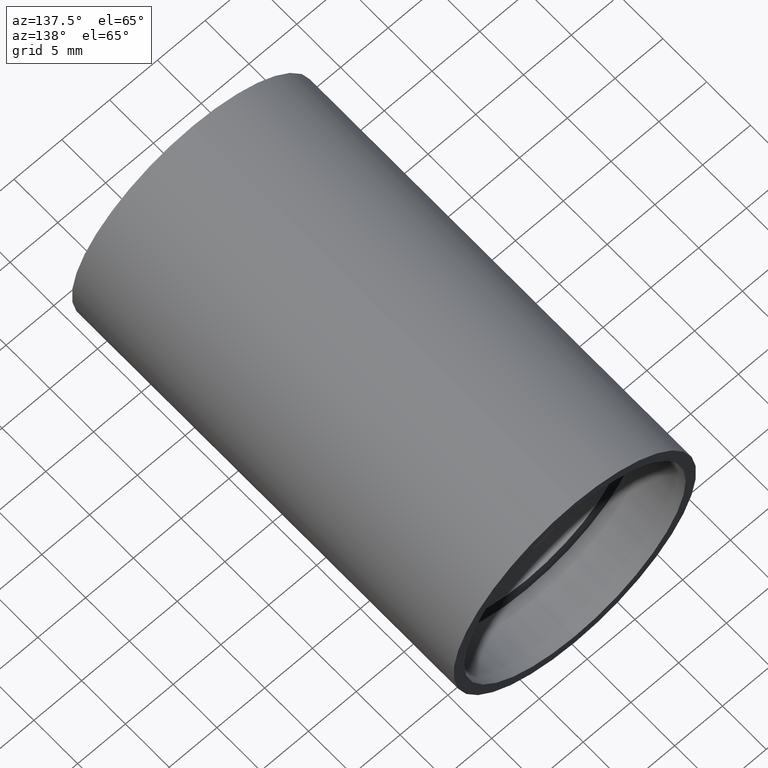
[diagram: clean part render]
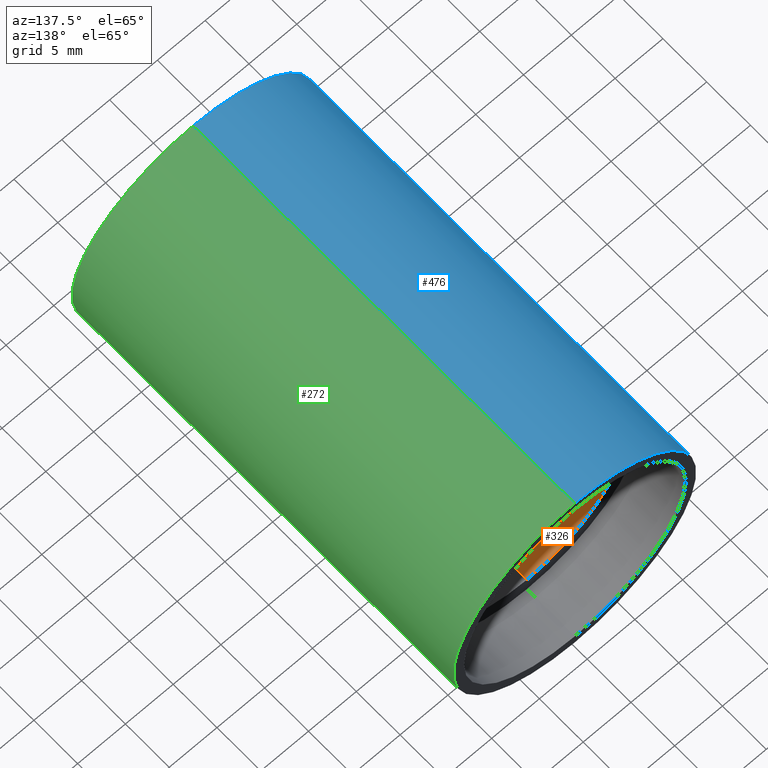
[diagram: same view with three faces highlighted in distinct colors, each labeled with its STEP entity id]
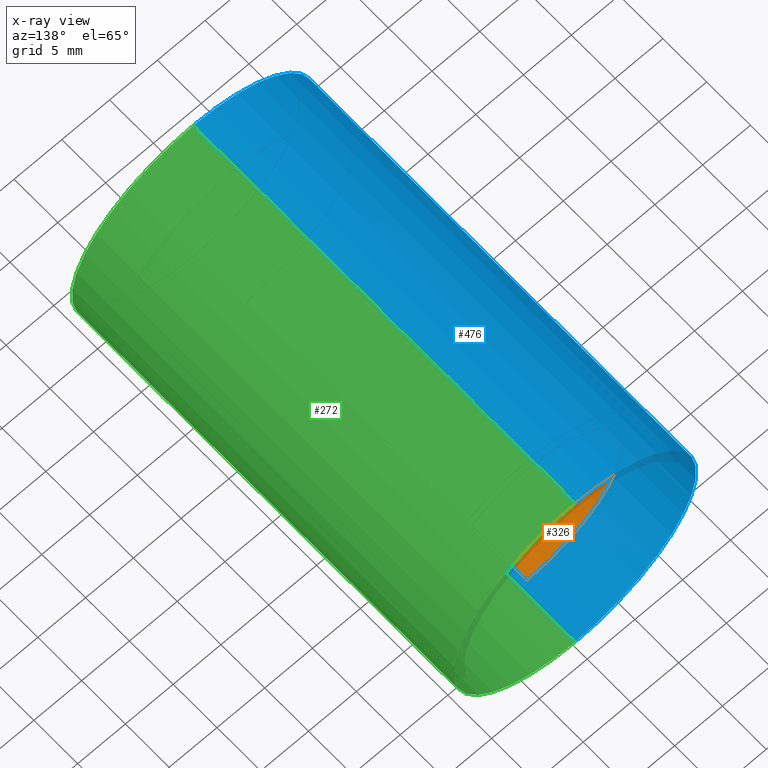
[diagram: x-ray of the same camera — body ghosted, the three highlighted faces saturated]
A machine part, auxiliary view with three faces highlighted in distinct colors.
The next image is the same camera in x-ray (body ghosted, the three faces saturated) — at least one of them is partly hidden behind the body in this view.
Their STEP definitions:

[orange] entity #326 — the highlighted cylindrical surface (partial cylindrical patch) has radius 10 mm, axis along (-0, 1, -0).
#4 = CARTESIAN_POINT ( 'NONE',  ( 0.0000000000000000000, 5.499999999999976900, 10.00000000000002000 ) ) ;
#28 = CYLINDRICAL_SURFACE ( 'NONE', #610, 10.00000000000002000 ) ;
#43 = AXIS2_PLACEMENT_3D ( 'NONE', #123, #620, #219 ) ;
#77 = ORIENTED_EDGE ( 'NONE', *, *, #302, .T. ) ;
#83 = CIRCLE ( 'NONE', #43, 10.00000000000002000 ) ;
#97 = CARTESIAN_POINT ( 'NONE',  ( 1.224646799147355400E-015, 5.499999999999976900, -10.00000000000002000 ) ) ;
#102 = CARTESIAN_POINT ( 'NONE',  ( 0.0000000000000000000, 38.09999999999998000, 0.0000000000000000000 ) ) ;
#114 = LINE ( 'NONE', #396, #128 ) ;
#123 = CARTESIAN_POINT ( 'NONE',  ( 0.0000000000000000000, 5.499999999999976900, 0.0000000000000000000 ) ) ;
#128 = VECTOR ( 'NONE', #595, 1000.000000000000000 ) ;
#147 = CARTESIAN_POINT ( 'NONE',  ( 0.0000000000000000000, 38.09999999999998000, 10.00000000000002000 ) ) ;
#156 = CARTESIAN_POINT ( 'NONE',  ( 1.224646799147355400E-015, 38.09999999999998000, -10.00000000000002000 ) ) ;
#160 = ORIENTED_EDGE ( 'NONE', *, *, #616, .T. ) ;
#194 = DIRECTION ( 'NONE',  ( 0.0000000000000000000, 0.0000000000000000000, 1.000000000000000000 ) ) ;
#219 = DIRECTION ( 'NONE',  ( 0.0000000000000000000, 0.0000000000000000000, 1.000000000000000000 ) ) ;
#246 = VERTEX_POINT ( 'NONE', #156 ) ;
#253 = EDGE_LOOP ( 'NONE', ( #589, #160, #77, #344 ) ) ;
#259 = CARTESIAN_POINT ( 'NONE',  ( 0.0000000000000000000, 161.3761669434274500, 10.00000000000002000 ) ) ;
#277 = LINE ( 'NONE', #259, #570 ) ;
#302 = EDGE_CURVE ( 'NONE', #246, #618, #428, .T. ) ;
#314 = DIRECTION ( 'NONE',  ( -0.0000000000000000000, 1.000000000000000000, -0.0000000000000000000 ) ) ;
#326 = ADVANCED_FACE ( 'NONE', ( #529 ), #28, .F. ) ;
#344 = ORIENTED_EDGE ( 'NONE', *, *, #549, .F. ) ;
#360 = CARTESIAN_POINT ( 'NONE',  ( 0.0000000000000000000, 161.3761669434274500, 0.0000000000000000000 ) ) ;
#363 = VERTEX_POINT ( 'NONE', #97 ) ;
#396 = CARTESIAN_POINT ( 'NONE',  ( 1.224646799147355400E-015, 161.3761669434274500, -10.00000000000002000 ) ) ;
#428 = CIRCLE ( 'NONE', #542, 10.00000000000002000 ) ;
#457 = DIRECTION ( 'NONE',  ( -0.0000000000000000000, 1.000000000000000000, -0.0000000000000000000 ) ) ;
#485 = EDGE_CURVE ( 'NONE', #363, #493, #83, .T. ) ;
#493 = VERTEX_POINT ( 'NONE', #4 ) ;
#529 = FACE_OUTER_BOUND ( 'NONE', #253, .T. ) ;
#542 = AXIS2_PLACEMENT_3D ( 'NONE', #102, #552, #554 ) ;
#549 = EDGE_CURVE ( 'NONE', #493, #618, #277, .T. ) ;
#552 = DIRECTION ( 'NONE',  ( -0.0000000000000000000, 1.000000000000000000, -0.0000000000000000000 ) ) ;
#554 = DIRECTION ( 'NONE',  ( 0.0000000000000000000, 0.0000000000000000000, 1.000000000000000000 ) ) ;
#570 = VECTOR ( 'NONE', #314, 1000.000000000000000 ) ;
#589 = ORIENTED_EDGE ( 'NONE', *, *, #485, .F. ) ;
#595 = DIRECTION ( 'NONE',  ( -0.0000000000000000000, 1.000000000000000000, -0.0000000000000000000 ) ) ;
#610 = AXIS2_PLACEMENT_3D ( 'NONE', #360, #457, #194 ) ;
#616 = EDGE_CURVE ( 'NONE', #363, #246, #114, .T. ) ;
#618 = VERTEX_POINT ( 'NONE', #147 ) ;
#620 = DIRECTION ( 'NONE',  ( -0.0000000000000000000, 1.000000000000000000, -0.0000000000000000000 ) ) ;

[blue] entity #476 — the highlighted cylindrical surface (partial cylindrical patch) has radius 12.7 mm, axis along (-0, 1, -0).
#13 = DIRECTION ( 'NONE',  ( -0.0000000000000000000, 1.000000000000000000, -0.0000000000000000000 ) ) ;
#38 = EDGE_CURVE ( 'NONE', #606, #343, #116, .T. ) ;
#75 = CIRCLE ( 'NONE', #270, 12.70000000000001900 ) ;
#93 = FACE_OUTER_BOUND ( 'NONE', #207, .T. ) ;
#116 = LINE ( 'NONE', #348, #333 ) ;
#133 = ORIENTED_EDGE ( 'NONE', *, *, #418, .T. ) ;
#137 = AXIS2_PLACEMENT_3D ( 'NONE', #275, #383, #424 ) ;
#153 = ORIENTED_EDGE ( 'NONE', *, *, #164, .F. ) ;
#164 = EDGE_CURVE ( 'NONE', #343, #568, #75, .T. ) ;
#196 = CARTESIAN_POINT ( 'NONE',  ( 0.0000000000000000000, -2.775557561562891400E-014, 12.70000000000001900 ) ) ;
#198 = CARTESIAN_POINT ( 'NONE',  ( 0.0000000000000000000, 43.59999999999998700, 12.70000000000001900 ) ) ;
#207 = EDGE_LOOP ( 'NONE', ( #576, #432, #133, #153 ) ) ;
#270 = AXIS2_PLACEMENT_3D ( 'NONE', #604, #367, #608 ) ;
#275 = CARTESIAN_POINT ( 'NONE',  ( 0.0000000000000000000, 161.3761669434274500, 0.0000000000000000000 ) ) ;
#286 = DIRECTION ( 'NONE',  ( -0.0000000000000000000, 1.000000000000000000, -0.0000000000000000000 ) ) ;
#315 = CYLINDRICAL_SURFACE ( 'NONE', #137, 12.70000000000001900 ) ;
#321 = CIRCLE ( 'NONE', #329, 12.70000000000001900 ) ;
#329 = AXIS2_PLACEMENT_3D ( 'NONE', #539, #13, #588 ) ;
#333 = VECTOR ( 'NONE', #286, 1000.000000000000000 ) ;
#335 = CARTESIAN_POINT ( 'NONE',  ( 0.0000000000000000000, 161.3761669434274500, 12.70000000000001900 ) ) ;
#343 = VERTEX_POINT ( 'NONE', #550 ) ;
#348 = CARTESIAN_POINT ( 'NONE',  ( 1.555301434917140800E-015, 161.3761669434274500, -12.70000000000001900 ) ) ;
#351 = VECTOR ( 'NONE', #531, 1000.000000000000000 ) ;
#357 = EDGE_CURVE ( 'NONE', #606, #574, #321, .T. ) ;
#367 = DIRECTION ( 'NONE',  ( -0.0000000000000000000, 1.000000000000000000, -0.0000000000000000000 ) ) ;
#383 = DIRECTION ( 'NONE',  ( -0.0000000000000000000, 1.000000000000000000, -0.0000000000000000000 ) ) ;
#418 = EDGE_CURVE ( 'NONE', #574, #568, #499, .T. ) ;
#424 = DIRECTION ( 'NONE',  ( 0.0000000000000000000, 0.0000000000000000000, 1.000000000000000000 ) ) ;
#432 = ORIENTED_EDGE ( 'NONE', *, *, #357, .T. ) ;
#476 = ADVANCED_FACE ( 'NONE', ( #93 ), #315, .T. ) ;
#499 = LINE ( 'NONE', #335, #351 ) ;
#531 = DIRECTION ( 'NONE',  ( -0.0000000000000000000, 1.000000000000000000, -0.0000000000000000000 ) ) ;
#535 = CARTESIAN_POINT ( 'NONE',  ( 1.555301434917140800E-015, -2.775557561562891400E-014, -12.70000000000001900 ) ) ;
#539 = CARTESIAN_POINT ( 'NONE',  ( 0.0000000000000000000, -2.775557561562891400E-014, 0.0000000000000000000 ) ) ;
#550 = CARTESIAN_POINT ( 'NONE',  ( 1.555301434917140800E-015, 43.59999999999998700, -12.70000000000001900 ) ) ;
#568 = VERTEX_POINT ( 'NONE', #198 ) ;
#574 = VERTEX_POINT ( 'NONE', #196 ) ;
#576 = ORIENTED_EDGE ( 'NONE', *, *, #38, .F. ) ;
#588 = DIRECTION ( 'NONE',  ( 0.0000000000000000000, 0.0000000000000000000, 1.000000000000000000 ) ) ;
#604 = CARTESIAN_POINT ( 'NONE',  ( 0.0000000000000000000, 43.59999999999998700, 0.0000000000000000000 ) ) ;
#606 = VERTEX_POINT ( 'NONE', #535 ) ;
#608 = DIRECTION ( 'NONE',  ( 0.0000000000000000000, 0.0000000000000000000, 1.000000000000000000 ) ) ;

[green] entity #272 — the highlighted cylindrical surface (partial cylindrical patch) has radius 12.7 mm, axis along (-0, 1, -0).
#24 = DIRECTION ( 'NONE',  ( 0.0000000000000000000, 0.0000000000000000000, 1.000000000000000000 ) ) ;
#38 = EDGE_CURVE ( 'NONE', #606, #343, #116, .T. ) ;
#76 = AXIS2_PLACEMENT_3D ( 'NONE', #508, #106, #24 ) ;
#85 = DIRECTION ( 'NONE',  ( -0.0000000000000000000, 1.000000000000000000, -0.0000000000000000000 ) ) ;
#86 = CIRCLE ( 'NONE', #240, 12.70000000000001900 ) ;
#87 = CARTESIAN_POINT ( 'NONE',  ( 0.0000000000000000000, -2.775557561562891400E-014, 0.0000000000000000000 ) ) ;
#106 = DIRECTION ( 'NONE',  ( -0.0000000000000000000, 1.000000000000000000, -0.0000000000000000000 ) ) ;
#108 = CIRCLE ( 'NONE', #571, 12.70000000000001900 ) ;
#116 = LINE ( 'NONE', #348, #333 ) ;
#118 = ORIENTED_EDGE ( 'NONE', *, *, #38, .T. ) ;
#124 = ORIENTED_EDGE ( 'NONE', *, *, #130, .F. ) ;
#130 = EDGE_CURVE ( 'NONE', #568, #343, #86, .T. ) ;
#186 = EDGE_LOOP ( 'NONE', ( #228, #118, #124, #420 ) ) ;
#196 = CARTESIAN_POINT ( 'NONE',  ( 0.0000000000000000000, -2.775557561562891400E-014, 12.70000000000001900 ) ) ;
#198 = CARTESIAN_POINT ( 'NONE',  ( 0.0000000000000000000, 43.59999999999998700, 12.70000000000001900 ) ) ;
#213 = DIRECTION ( 'NONE',  ( -0.0000000000000000000, 1.000000000000000000, -0.0000000000000000000 ) ) ;
#228 = ORIENTED_EDGE ( 'NONE', *, *, #385, .T. ) ;
#240 = AXIS2_PLACEMENT_3D ( 'NONE', #515, #213, #562 ) ;
#272 = ADVANCED_FACE ( 'NONE', ( #447 ), #611, .T. ) ;
#286 = DIRECTION ( 'NONE',  ( -0.0000000000000000000, 1.000000000000000000, -0.0000000000000000000 ) ) ;
#333 = VECTOR ( 'NONE', #286, 1000.000000000000000 ) ;
#335 = CARTESIAN_POINT ( 'NONE',  ( 0.0000000000000000000, 161.3761669434274500, 12.70000000000001900 ) ) ;
#338 = DIRECTION ( 'NONE',  ( 0.0000000000000000000, 0.0000000000000000000, 1.000000000000000000 ) ) ;
#343 = VERTEX_POINT ( 'NONE', #550 ) ;
#348 = CARTESIAN_POINT ( 'NONE',  ( 1.555301434917140800E-015, 161.3761669434274500, -12.70000000000001900 ) ) ;
#351 = VECTOR ( 'NONE', #531, 1000.000000000000000 ) ;
#385 = EDGE_CURVE ( 'NONE', #574, #606, #108, .T. ) ;
#418 = EDGE_CURVE ( 'NONE', #574, #568, #499, .T. ) ;
#420 = ORIENTED_EDGE ( 'NONE', *, *, #418, .F. ) ;
#447 = FACE_OUTER_BOUND ( 'NONE', #186, .T. ) ;
#499 = LINE ( 'NONE', #335, #351 ) ;
#508 = CARTESIAN_POINT ( 'NONE',  ( 0.0000000000000000000, 161.3761669434274500, 0.0000000000000000000 ) ) ;
#515 = CARTESIAN_POINT ( 'NONE',  ( 0.0000000000000000000, 43.59999999999998700, 0.0000000000000000000 ) ) ;
#531 = DIRECTION ( 'NONE',  ( -0.0000000000000000000, 1.000000000000000000, -0.0000000000000000000 ) ) ;
#535 = CARTESIAN_POINT ( 'NONE',  ( 1.555301434917140800E-015, -2.775557561562891400E-014, -12.70000000000001900 ) ) ;
#550 = CARTESIAN_POINT ( 'NONE',  ( 1.555301434917140800E-015, 43.59999999999998700, -12.70000000000001900 ) ) ;
#562 = DIRECTION ( 'NONE',  ( 0.0000000000000000000, 0.0000000000000000000, 1.000000000000000000 ) ) ;
#568 = VERTEX_POINT ( 'NONE', #198 ) ;
#571 = AXIS2_PLACEMENT_3D ( 'NONE', #87, #85, #338 ) ;
#574 = VERTEX_POINT ( 'NONE', #196 ) ;
#606 = VERTEX_POINT ( 'NONE', #535 ) ;
#611 = CYLINDRICAL_SURFACE ( 'NONE', #76, 12.70000000000001900 ) ;